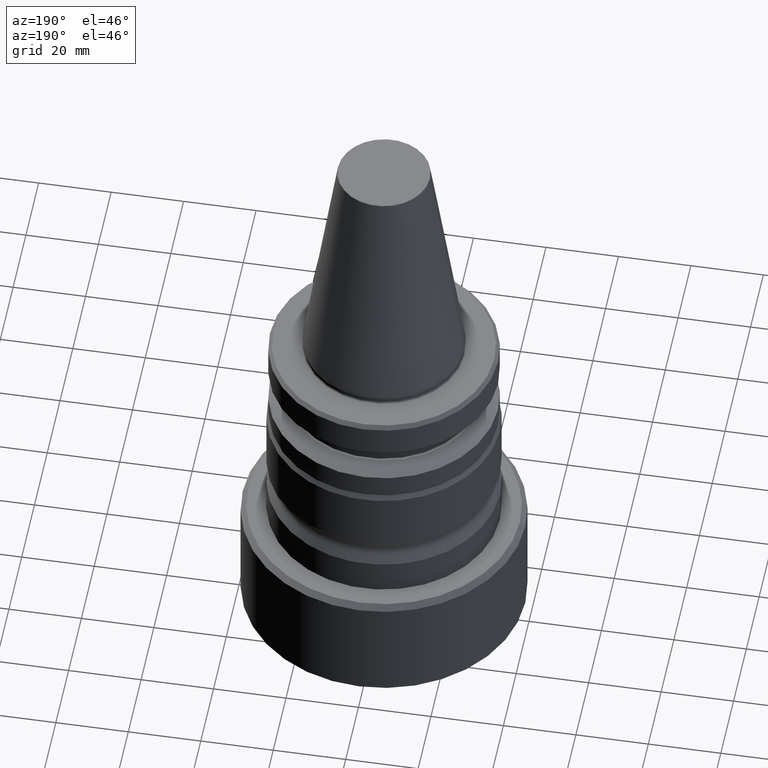
[diagram: clean part render]
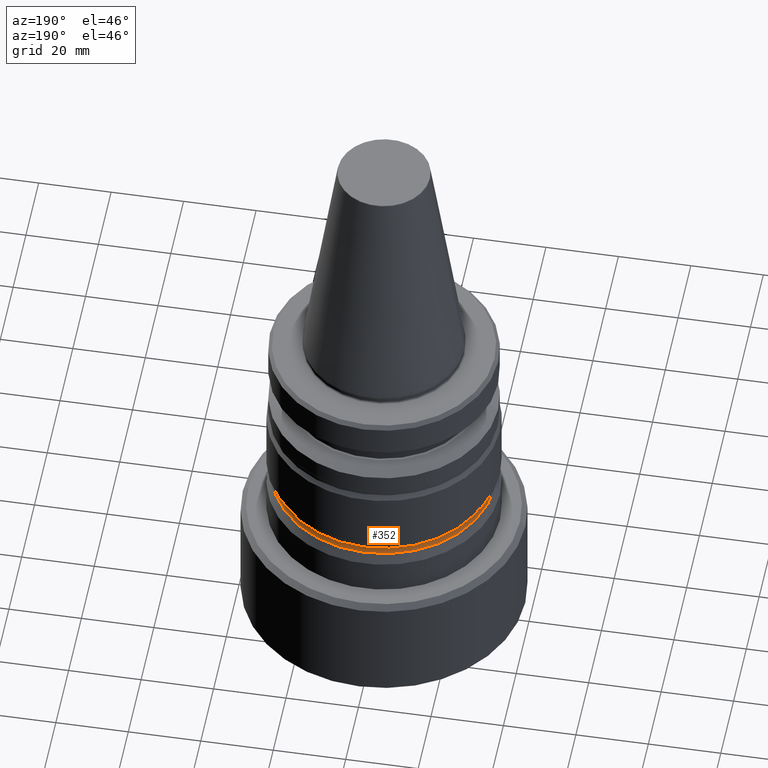
[diagram: same view with one face highlighted and labeled with its STEP entity id]
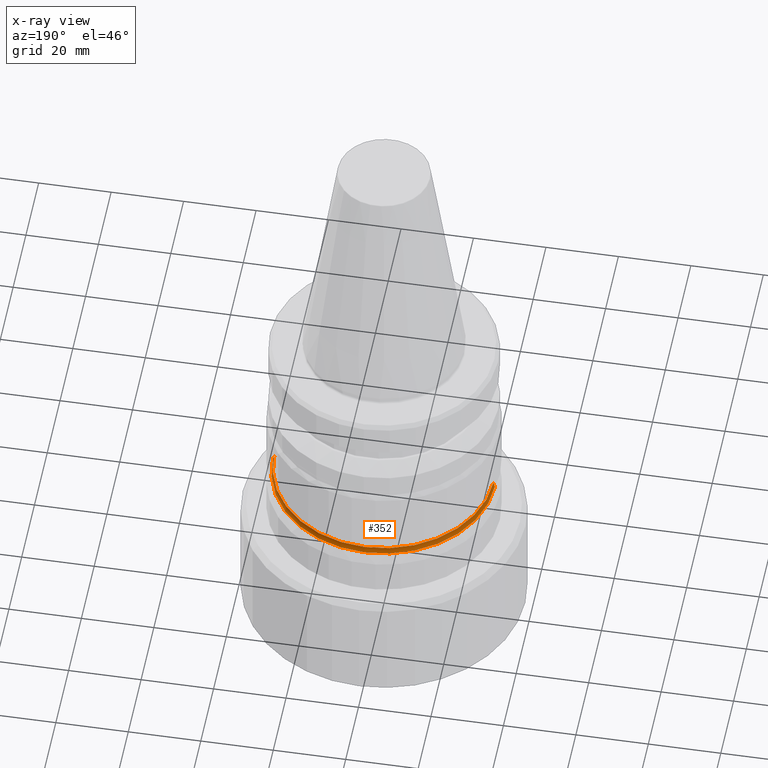
[diagram: x-ray of the same camera — body ghosted, the highlighted face saturated]
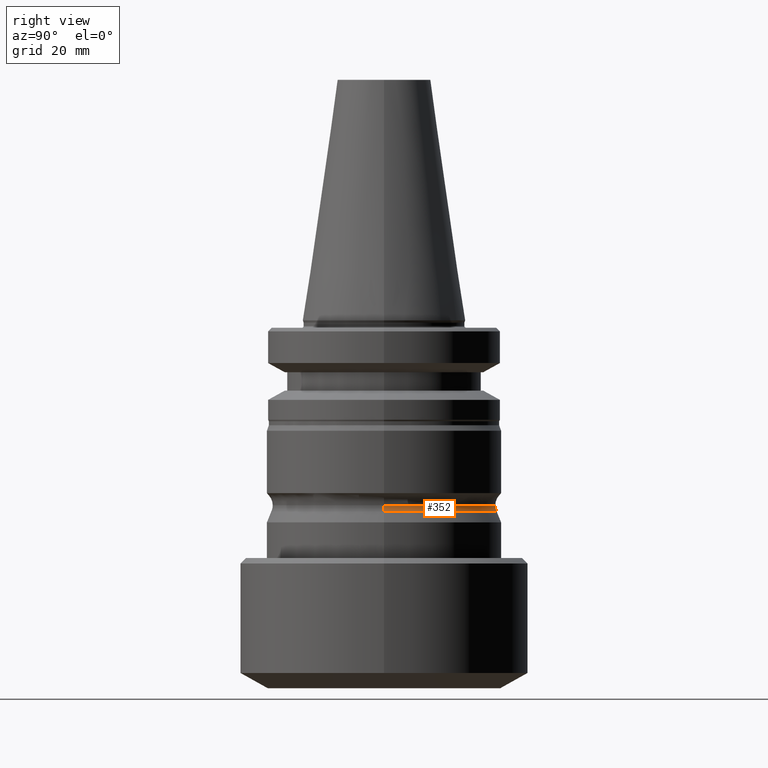
[diagram: same view with one face highlighted and labeled with its STEP entity id]
A machine part, auxiliary view. The second image highlights one B-rep face of the part: STEP entity #352.
The next image is the same camera in x-ray: the body ghosted, the highlighted face saturated — about 0% of this face is hidden behind the body in this view.
A second angle (right view) of the same face is appended — the face is thin or edge-on in the first view.
In plain terms, the highlighted toroidal blend (fillet) surface has major radius 34.25 mm and minor (blend) radius 4 mm.
Its self-contained STEP definition (entity closure, byte-faithful):
#18 = DIRECTION ( 'NONE',  ( 0.0000000000000000000, -1.000000000000000000, 0.0000000000000000000 ) ) ;
#30 = TOROIDAL_SURFACE ( 'NONE', #1014, 34.24999999999989300, 3.999999999999927200 ) ;
#36 = DIRECTION ( 'NONE',  ( 1.000000000000000000, 0.0000000000000000000, 0.0000000000000000000 ) ) ;
#42 = DIRECTION ( 'NONE',  ( 1.000000000000000000, 0.0000000000000000000, 0.0000000000000000000 ) ) ;
#171 = CARTESIAN_POINT ( 'NONE',  ( 0.0000000000000000000, 0.0000000000000000000, -50.26218308023322800 ) ) ;
#177 = EDGE_CURVE ( 'NONE', #876, #607, #579, .T. ) ;
#191 = CIRCLE ( 'NONE', #518, 30.62476885185316900 ) ;
#254 = AXIS2_PLACEMENT_3D ( 'NONE', #829, #18, #1172 ) ;
#268 = DIRECTION ( 'NONE',  ( 1.224646799147353200E-016, 1.000000000000000000, 0.0000000000000000000 ) ) ;
#295 = VERTEX_POINT ( 'NONE', #1330 ) ;
#301 = AXIS2_PLACEMENT_3D ( 'NONE', #755, #404, #42 ) ;
#352 = ADVANCED_FACE ( 'NONE', ( #748 ), #30, .F. ) ;
#366 = AXIS2_PLACEMENT_3D ( 'NONE', #1367, #268, #1198 ) ;
#404 = DIRECTION ( 'NONE',  ( -0.0000000000000000000, -0.0000000000000000000, 1.000000000000000000 ) ) ;
#410 = DIRECTION ( 'NONE',  ( 1.000000000000000000, 0.0000000000000000000, 0.0000000000000000000 ) ) ;
#487 = CIRCLE ( 'NONE', #366, 3.999999999999927200 ) ;
#518 = AXIS2_PLACEMENT_3D ( 'NONE', #792, #631, #410 ) ;
#529 = EDGE_LOOP ( 'NONE', ( #561, #601, #858, #1287 ) ) ;
#561 = ORIENTED_EDGE ( 'NONE', *, *, #1026, .F. ) ;
#567 = DIRECTION ( 'NONE',  ( -0.0000000000000000000, -0.0000000000000000000, 1.000000000000000000 ) ) ;
#579 = CIRCLE ( 'NONE', #254, 3.999999999999927200 ) ;
#601 = ORIENTED_EDGE ( 'NONE', *, *, #177, .T. ) ;
#607 = VERTEX_POINT ( 'NONE', #894 ) ;
#608 = CARTESIAN_POINT ( 'NONE',  ( 30.24999999999996400, 0.0000000000000000000, -50.26218308023322800 ) ) ;
#631 = DIRECTION ( 'NONE',  ( -0.0000000000000000000, -0.0000000000000000000, 1.000000000000000000 ) ) ;
#724 = CARTESIAN_POINT ( 'NONE',  ( -30.24999999999996400, 3.704556567420739000E-015, -50.26218308023322800 ) ) ;
#748 = FACE_OUTER_BOUND ( 'NONE', #529, .T. ) ;
#755 = CARTESIAN_POINT ( 'NONE',  ( 0.0000000000000000000, 0.0000000000000000000, -50.26218308023322800 ) ) ;
#792 = CARTESIAN_POINT ( 'NONE',  ( 0.0000000000000000000, 0.0000000000000000000, -51.95265612719568100 ) ) ;
#829 = CARTESIAN_POINT ( 'NONE',  ( 34.24999999999989300, 0.0000000000000000000, -50.26218308023322800 ) ) ;
#858 = ORIENTED_EDGE ( 'NONE', *, *, #1359, .T. ) ;
#876 = VERTEX_POINT ( 'NONE', #608 ) ;
#894 = CARTESIAN_POINT ( 'NONE',  ( 30.62476885185316900, 3.834661136088258500E-015, -51.95265612719568100 ) ) ;
#961 = EDGE_CURVE ( 'NONE', #1380, #295, #487, .T. ) ;
#994 = CIRCLE ( 'NONE', #301, 30.24999999999996400 ) ;
#1014 = AXIS2_PLACEMENT_3D ( 'NONE', #171, #567, #36 ) ;
#1026 = EDGE_CURVE ( 'NONE', #876, #1380, #994, .T. ) ;
#1172 = DIRECTION ( 'NONE',  ( 0.0000000000000000000, 0.0000000000000000000, -1.000000000000000000 ) ) ;
#1198 = DIRECTION ( 'NONE',  ( -1.000000000000000000, 1.224646799147353500E-016, 0.0000000000000000000 ) ) ;
#1287 = ORIENTED_EDGE ( 'NONE', *, *, #961, .F. ) ;
#1330 = CARTESIAN_POINT ( 'NONE',  ( -30.62476885185316900, 0.0000000000000000000, -51.95265612719568100 ) ) ;
#1359 = EDGE_CURVE ( 'NONE', #607, #295, #191, .T. ) ;
#1367 = CARTESIAN_POINT ( 'NONE',  ( -34.24999999999989300, 4.194415287079671700E-015, -50.26218308023322800 ) ) ;
#1380 = VERTEX_POINT ( 'NONE', #724 ) ;